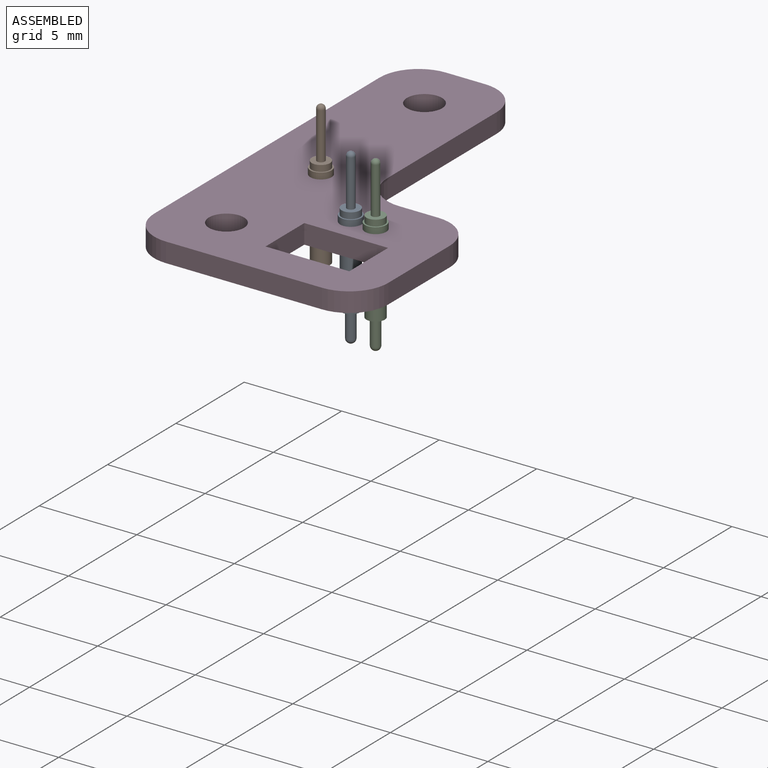
[diagram: assembled view]
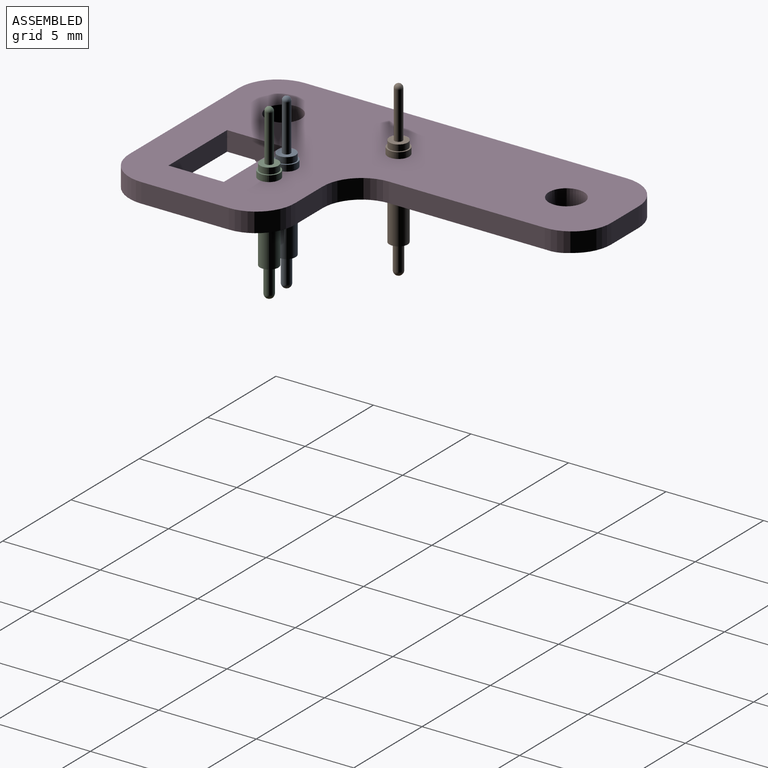
[diagram: assembled view, second angle]
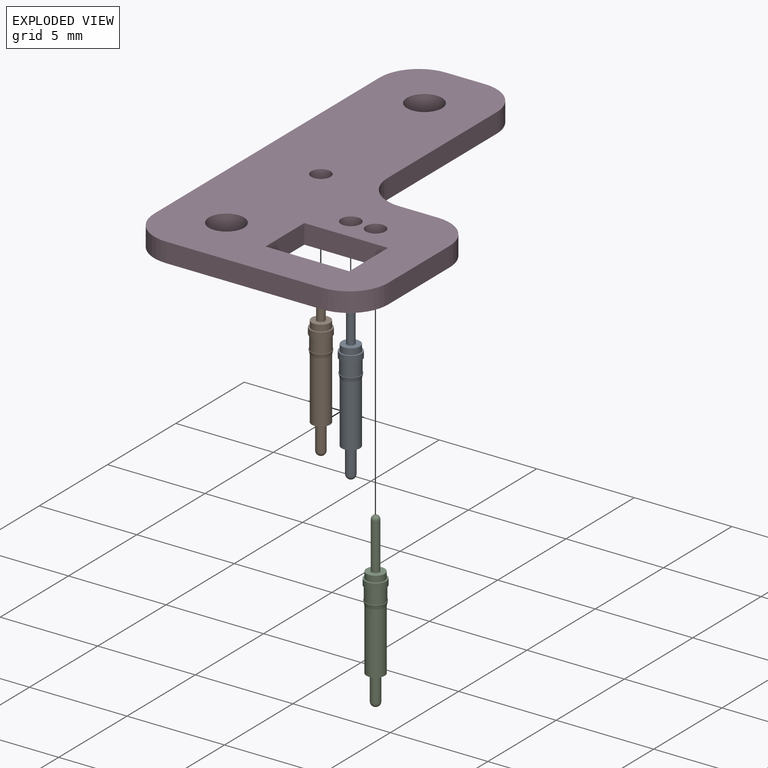
[diagram: exploded view]
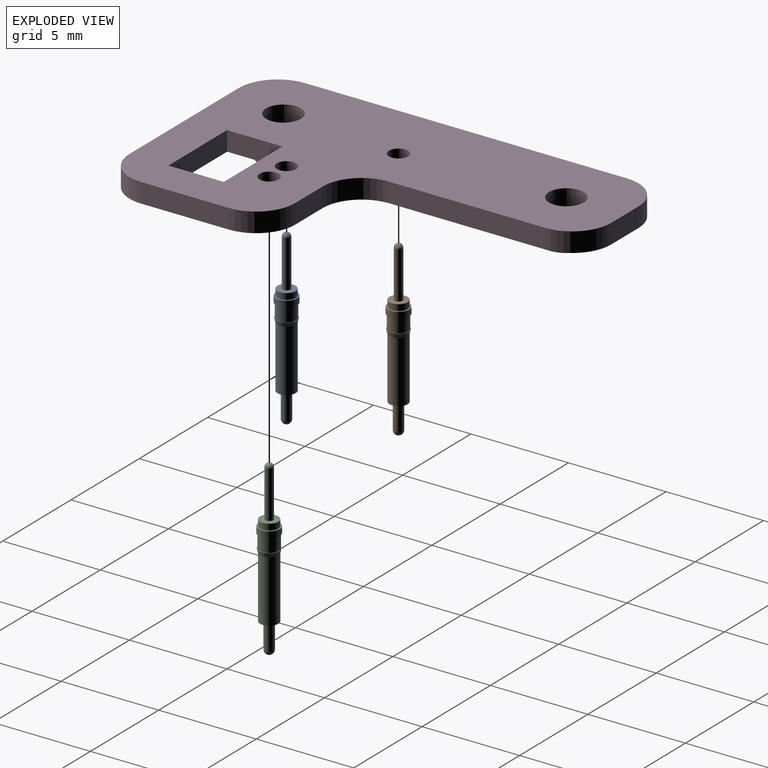
[diagram: exploded view, second angle]
ASSEMBLY  parts=4 mates=3
PART A: 14 faces, bbox 8.9x1.1x1.1 mm
  f0: sphere r=0.2mm, area 0.3mm2, adj f13
  f1: sphere r=0.24mm, area 0.4mm2, adj f2
  f2: cylinder r=0.24mm len=1.31mm, axis (-1,0,0), area 2mm2, adj f1,f3
  f3: plane 0.94x0.94mm, normal (1,0,0), area 0.5mm2, adj f2,f4
  f4: cylinder r=0.47mm len=3.17mm, axis (-1,0,0), area 9.3mm2, adj f3,f5
  f5: cone r=0.47mm half-angle=15deg, axis (-1,0,0), area 0.7mm2, adj f4,f6
  f6: plane 1.05x1.05mm, normal (-1,0,0), area 0.1mm2, adj f5,f7
  f7: cylinder r=0.5mm len=0.99mm, axis (-1,0,0), area 2.2mm2, adj f6,f8
  f8: plane 1.09x1.09mm, normal (1,0,0), area 0.2mm2, adj f7,f9
  f9: cylinder r=0.55mm len=1.09mm, axis (-1,0,0), area 1.1mm2, adj f8,f10
  f10: plane 1.09x1.09mm, normal (-1,0,0), area 0.2mm2, adj f9,f11
  f11: cylinder r=0.47mm len=0.94mm, axis (-1,0,0), area 0.9mm2, adj f10,f12
  f12: plane 0.94x0.94mm, normal (-1,0,0), area 0.6mm2, adj f11,f13
  f13: cylinder r=0.2mm len=2.41mm, axis (-1,0,0), area 3.1mm2, adj f0,f12
PART B: same geometry as A
PART C: same geometry as A
PART D: 29 faces, bbox 12x20.5x2 mm
  f0: plane 2x1mm, normal (0,1,0), area 2mm2, adj f1,f15,f16,f17
  f1: cylinder r=2mm len=2mm, axis (0,0,-1), area 3.1mm2, adj f0,f2,f16,f17
  f2: plane 16.5x1mm, normal (-1,0,0), area 16.5mm2, adj f1,f3,f16,f17
  f3: cylinder r=2mm len=2mm, axis (0,0,-1), area 3.1mm2, adj f2,f4,f16,f17
  f4: plane 8x1mm, normal (0,-1,0), area 8mm2, adj f3,f5,f16,f17
  f5: cylinder r=2mm len=2mm, axis (0,0,-1), area 3.1mm2, adj f4,f6,f16,f17
  f6: plane 4.5x1mm, normal (1,0,0), area 4.5mm2, adj f5,f7,f16,f17
  f7: cylinder r=2mm len=2mm, axis (0,0,-1), area 3.1mm2, adj f6,f8,f16,f17
  f8: plane 2x1mm, normal (0,1,0), area 2mm2, adj f7,f9,f16,f17
  f9: cylinder r=2mm len=2mm, axis (0,0,-1), area 3.1mm2, adj f8,f10,f16,f17
  f10: plane 8x1mm, normal (1,0,0), area 8mm2, adj f9,f15,f16,f17
  f11: plane 2.84x1mm, normal (1,0,0), area 2.8mm2, adj f12,f14,f16,f17
  f12: plane 4.3x1mm, normal (0,-1,0), area 4.3mm2, adj f11,f13,f16,f17
  f13: plane 2.84x1mm, normal (-1,0,0), area 2.8mm2, adj f12,f14,f16,f17
  f14: plane 4.3x1mm, normal (0,1,0), area 4.3mm2, adj f11,f13,f16,f17
  f15: cylinder r=2mm len=2mm, axis (0,0,-1), area 3.1mm2, adj f0,f10,f16,f17
  f16: plane 20.5x12mm, normal (0,0,1), area 151mm2, adj f0,f1,f2,f3,f4,f5,f6,f7
  f17: plane 20.5x12mm, normal (0,0,-1), area 146.8mm2, adj f0,f1,f2,f3,f4,f5,f6,f7
  f18: cylinder r=1.25mm len=2.5mm, axis (0,0,1), area 5.5mm2, adj f17,f19,f27,f28
  f19: plane 2.5x2mm, normal (0,0,-1), area 1.8mm2, adj f18,f23,f27,f28
  f20: cylinder r=1.25mm len=2.5mm, axis (0,0,1), area 7.9mm2, adj f17,f21
  f21: plane 2.5x2.5mm, normal (0,0,-1), area 2.4mm2, adj f20,f22
  f22: cylinder r=0.9mm len=2mm, axis (0,0,1), area 11.3mm2, adj f16,f21
  f23: cylinder r=0.9mm len=2mm, axis (0,0,1), area 10.3mm2, adj f16,f17,f19,f27,f28
  f24: cylinder r=0.49mm len=1mm, axis (0,0,1), area 3.1mm2, adj f16,f17
  f25: cylinder r=0.49mm len=1mm, axis (0,0,1), area 3.1mm2, adj f16,f17
  f26: cylinder r=0.49mm len=1mm, axis (0,0,1), area 3.1mm2, adj f16,f17
  f27: plane 1x0.5mm, normal (0,-1,0), area 0.5mm2, adj f17,f18,f19,f23
  f28: plane 1x0.5mm, normal (0,-1,0), area 0.5mm2, adj f17,f18,f19,f23
PLACE A rot(axis=(0,1,0),90deg) t=(7.21,6.1,4.25)mm
PLACE B rot(axis=(0,1,0),90deg) t=(3.48,9.23,4.25)mm
PLACE C rot(axis=(0,1,0),90deg) t=(8.48,6.1,4.25)mm
PLACE D at identity
MATE fastened B.f5 <-> D.f26  axis (0,0,1) through (3.48,9.23,1)mm
MATE fastened C.f5 <-> D.f24  axis (0,0,1) through (8.48,6.1,1)mm
MATE fastened A.f5 <-> D.f25  axis (0,0,1) through (7.21,6.1,1)mm
